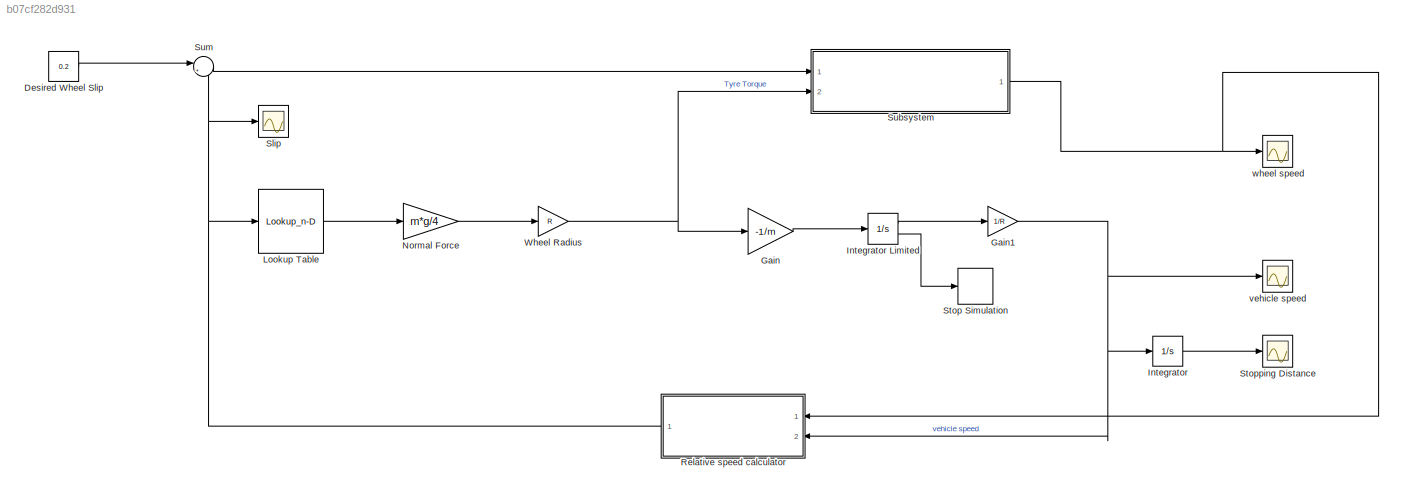
MODEL slx_b07cf282d931
KIND model
CONFIG AbsTol = auto
CONFIG EnableMultiTasking = off
CONFIG FixedStep = auto
CONFIG MaxStep = auto
CONFIG MinStep = auto
CONFIG PreLoadFcn =  m=75\nv0=44\nR=1.25\ng=9.81\nI=6
CONFIG RelTol = 1e-3
CONFIG SampleTimeConstraint = Unconstrained
CONFIG SolverName = VariableStepAuto
CONFIG StartTime = 0.0
CONFIG StopTime = 10.0
BLOCK [Constant] Desired Wheel Slip
  Value = 0.2
BLOCK [Gain] Gain
  Gain = -1/m
BLOCK [Gain] Gain1
  Gain = 1/R
BLOCK [Integrator] Integrator
  Ports = [1, 1]
BLOCK [Integrator] Integrator Limited
  InitialCondition = v0/R
  LimitOutput = on
  LowerSaturationLimit = 0
  Ports = [1, 2]
  ShowSaturationPort = on
  UpperSaturationLimit = 1000
BLOCK [Lookup_n-D] Lookup Table
  BreakpointsForDimension1 = [0,0.05,0.1,0.15,0.2,0.25,0.3,0.35,0.4,0.45,0.5,0.55,0.6,0.65,0.7,0.75,0.8,0.85,0.9,0.95,1]
  InputPortMap = u0
  InternalRulePriority = Speed
  NumberOfTableDimensions = 1
  Ports = [1, 1]
  RndMeth = Simplest
  Table = [0,0.4,0.8,0.97,1,0.98,0.96,0.94,0.92,0.9,0.88,0.855,0.83,0.81,0.79,0.77,0.75,0.73,0.72,0.71,0.7]
BLOCK [Gain] Normal Force 
  Gain = m*g/4
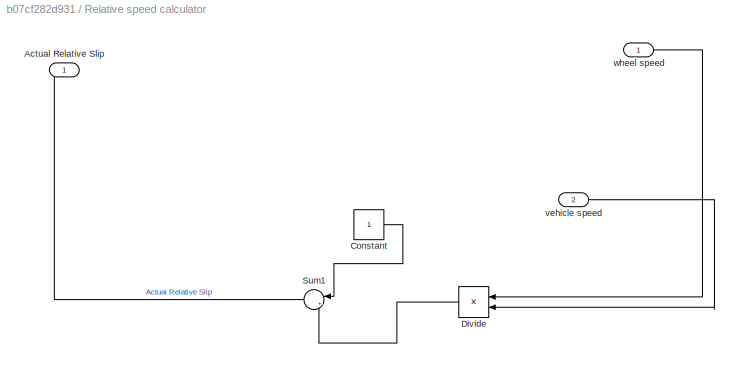
BLOCK [SubSystem] Relative speed calculator
  Ports = [2, 1]
  RequestExecContextInheritance = off
BLOCK [Outport] Relative speed calculator/Actual Relative Slip
BLOCK [Constant] Relative speed calculator/Constant
BLOCK [Product] Relative speed calculator/Divide
  Inputs = */
  NameLocation = top
  Ports = [2, 1]
BLOCK [Sum] Relative speed calculator/Sum1
  Inputs = |+-
  Ports = [2, 1]
BLOCK [Inport] Relative speed calculator/vehicle speed
  Port = 2
BLOCK [Inport] Relative speed calculator/wheel speed
BLOCK [Scope] Slip
  Floating = off
  NumInputPorts = 1
  Ports = [1]
  ScopeSpecificationString = Simulink.scopes.TimeScopeBlockCfg('CurrentConfiguration', extmgr.ConfigurationSet(extmgr.Configuration('Core','General UI',true),extmgr.Configuration('Core','Source UI',true),extmgr.Configuration('Sources','WiredSimulink',true,'DataLoggingVariableName','ScopeData1'),extmgr.Configuration('Visuals','Time Domain',true,'SerializedDisplays',{struct('MinYLimReal','-0.31489','MaxYLimReal','0.33401','YLab...<+1409ch>
BLOCK [Stop] Stop Simulation
BLOCK [Scope] Stopping Distance
  Floating = off
  NumInputPorts = 1
  Ports = [1]
  ScopeSpecificationString = Simulink.scopes.TimeScopeBlockCfg('CurrentConfiguration', extmgr.ConfigurationSet(extmgr.Configuration('Core','General UI',true),extmgr.Configuration('Core','Source UI',true),extmgr.Configuration('Sources','WiredSimulink',true,'DataLoggingVariableName','ScopeData2'),extmgr.Configuration('Visuals','Time Domain',true,'SerializedDisplays',{struct('MinYLimReal','-24.31988','MaxYLimReal','218.87894','Y...<+1404ch>
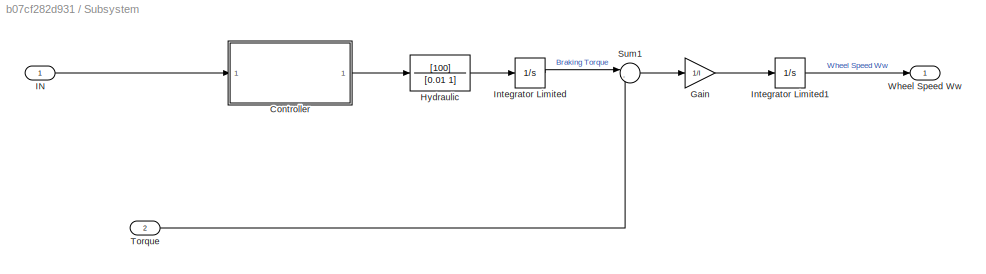
BLOCK [SubSystem] Subsystem
  Ports = [2, 1]
  RequestExecContextInheritance = off
BLOCK [Inport] Subsystem/ Torque
  Port = 2
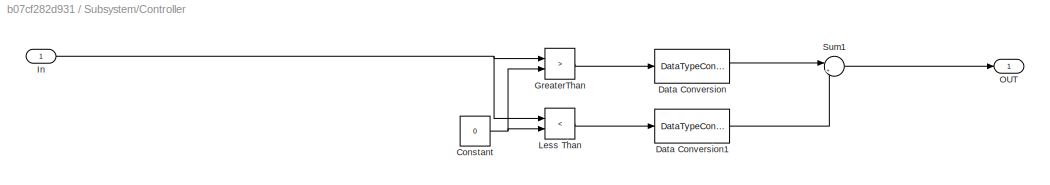
BLOCK [SubSystem] Subsystem/Controller
  Ports = [1, 1]
  RequestExecContextInheritance = off
BLOCK [Constant] Subsystem/Controller/Constant
  Value = 0
BLOCK [DataTypeConversion] Subsystem/Controller/Data  Conversion 
  OutDataTypeStr = double
  SaturateOnIntegerOverflow = off
BLOCK [DataTypeConversion] Subsystem/Controller/Data Conversion1 
  OutDataTypeStr = double
  SaturateOnIntegerOverflow = off
BLOCK [RelationalOperator] Subsystem/Controller/GreaterThan 
  InputSameDT = off
  Operator = >
  OutDataTypeStr = boolean
  Ports = [2, 1]
  RndMeth = Simplest
BLOCK [Inport] Subsystem/Controller/In
BLOCK [RelationalOperator] Subsystem/Controller/Less Than 
  InputSameDT = off
  Operator = <
  OutDataTypeStr = boolean
  Ports = [2, 1]
  RndMeth = Simplest
BLOCK [Outport] Subsystem/Controller/OUT
BLOCK [Sum] Subsystem/Controller/Sum1
  Inputs = |+-
  Ports = [2, 1]
BLOCK [Gain] Subsystem/Gain
  Gain = 1/I
BLOCK [TransferFcn] Subsystem/Hydraulic 
  Denominator = [0.01 1]
  Numerator = [100]
BLOCK [Inport] Subsystem/IN
BLOCK [Integrator] Subsystem/Integrator Limited
  LimitOutput = on
  LowerSaturationLimit = 0
  Ports = [1, 1]
  UpperSaturationLimit = 1000
BLOCK [Integrator] Subsystem/Integrator Limited1
  InitialCondition = v0/R
  LimitOutput = on
  LowerSaturationLimit = 0
  Ports = [1, 1]
  UpperSaturationLimit = 1000
BLOCK [Sum] Subsystem/Sum1
  Inputs = |-+
  Ports = [2, 1]
BLOCK [Outport] Subsystem/Wheel Speed Ww
BLOCK [Sum] Sum
  Inputs = |+-
  Ports = [2, 1]
BLOCK [Gain] Wheel Radius
  Gain = R
BLOCK [Scope] vehicle  speed
  Floating = off
  NumInputPorts = 1
  Ports = [1]
  ScopeSpecificationString = Simulink.scopes.TimeScopeBlockCfg('CurrentConfiguration', extmgr.ConfigurationSet(extmgr.Configuration('Core','General UI',true),extmgr.Configuration('Core','Source UI',true),extmgr.Configuration('Sources','WiredSimulink',true,'DataLoggingVariableName','ScopeData3'),extmgr.Configuration('Visuals','Time Domain',true,'SerializedDisplays',{struct('MinYLimReal','5.1622','MaxYLimReal','31.14435','YLabe...<+1370ch>
BLOCK [Scope] wheel speed
  Floating = off
  NumInputPorts = 1
  Ports = [1]
  ScopeSpecificationString = Simulink.scopes.TimeScopeBlockCfg('CurrentConfiguration', extmgr.ConfigurationSet(extmgr.Configuration('Core','General UI',true),extmgr.Configuration('Core','Source UI',true),extmgr.Configuration('Sources','WiredSimulink',true),extmgr.Configuration('Visuals','Time Domain',true,'SerializedDisplays',{struct('MinYLimReal','2.05764','MaxYLimReal','38.88248','YLabelReal','','MinYLimMag','2.05764','MaxY...<+1331ch>
LINE Desired Wheel Slip:1 -> Sum:1
NET Gain1:1 -> Integrator:1, Relative speed calculator:2, vehicle  speed:1
LINE Gain:1 -> Integrator Limited:1
LINE Integrator Limited:1 -> Gain1:1
LINE Integrator Limited:2 -> Stop Simulation:1
LINE Integrator:1 -> Stopping Distance:1
LINE Lookup Table:1 -> Normal Force :1
LINE Normal Force :1 -> Wheel Radius:1
LINE Relative speed calculator/Constant:1 -> Relative speed calculator/Sum1:1
LINE Relative speed calculator/Divide:1 -> Relative speed calculator/Sum1:2
LINE Relative speed calculator/Sum1:1 -> Relative speed calculator/Actual Relative Slip:1
LINE Relative speed calculator/vehicle speed:1 -> Relative speed calculator/Divide:2
LINE Relative speed calculator/wheel speed:1 -> Relative speed calculator/Divide:1
NET Relative speed calculator:1 -> Lookup Table:1, Slip:1, Sum:2
LINE Subsystem/ Torque:1 -> Subsystem/Sum1:2
NET Subsystem/Controller/Constant:1 -> Subsystem/Controller/GreaterThan :2, Subsystem/Controller/Less Than :2
LINE Subsystem/Controller/Data  Conversion :1 -> Subsystem/Controller/Sum1:1
LINE Subsystem/Controller/Data Conversion1 :1 -> Subsystem/Controller/Sum1:2
LINE Subsystem/Controller/GreaterThan :1 -> Subsystem/Controller/Data  Conversion :1
NET Subsystem/Controller/In:1 -> Subsystem/Controller/GreaterThan :1, Subsystem/Controller/Less Than :1
LINE Subsystem/Controller/Less Than :1 -> Subsystem/Controller/Data Conversion1 :1
LINE Subsystem/Controller/Sum1:1 -> Subsystem/Controller/OUT:1
LINE Subsystem/Controller:1 -> Subsystem/Hydraulic :1
LINE Subsystem/Gain:1 -> Subsystem/Integrator Limited1:1
LINE Subsystem/Hydraulic :1 -> Subsystem/Integrator Limited:1
LINE Subsystem/IN:1 -> Subsystem/Controller:1
LINE Subsystem/Integrator Limited1:1 -> Subsystem/Wheel Speed Ww:1
LINE Subsystem/Integrator Limited:1 -> Subsystem/Sum1:1
LINE Subsystem/Sum1:1 -> Subsystem/Gain:1
NET Subsystem:1 -> Relative speed calculator:1, wheel speed:1
LINE Sum:1 -> Subsystem:1
NET Wheel Radius:1 -> Gain:1, Subsystem:2
note: NET lines group one-source signal fan-out (src -> all destinations, sorted); 1:1 wires keep LINE
